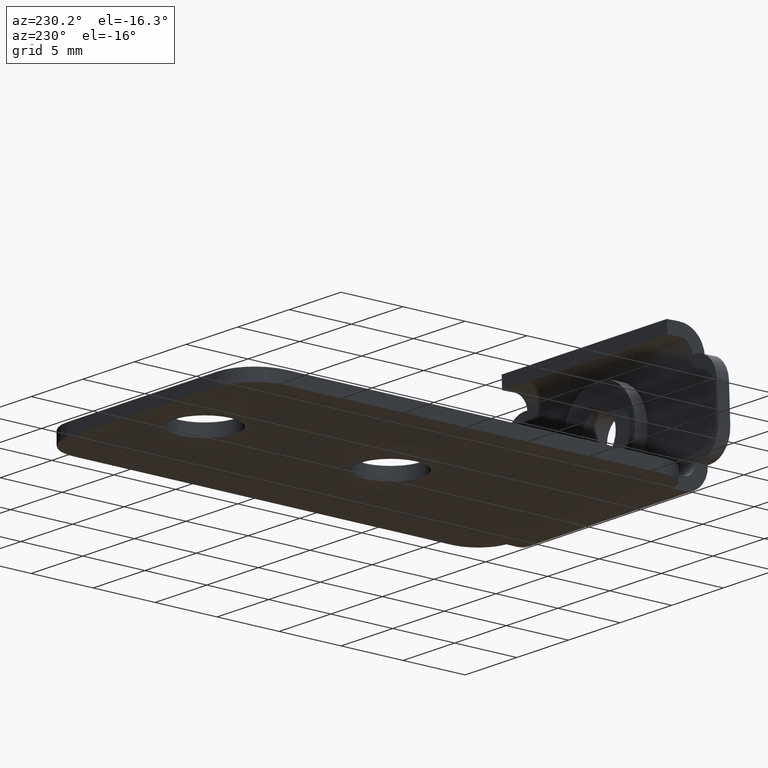
[diagram: clean part render]
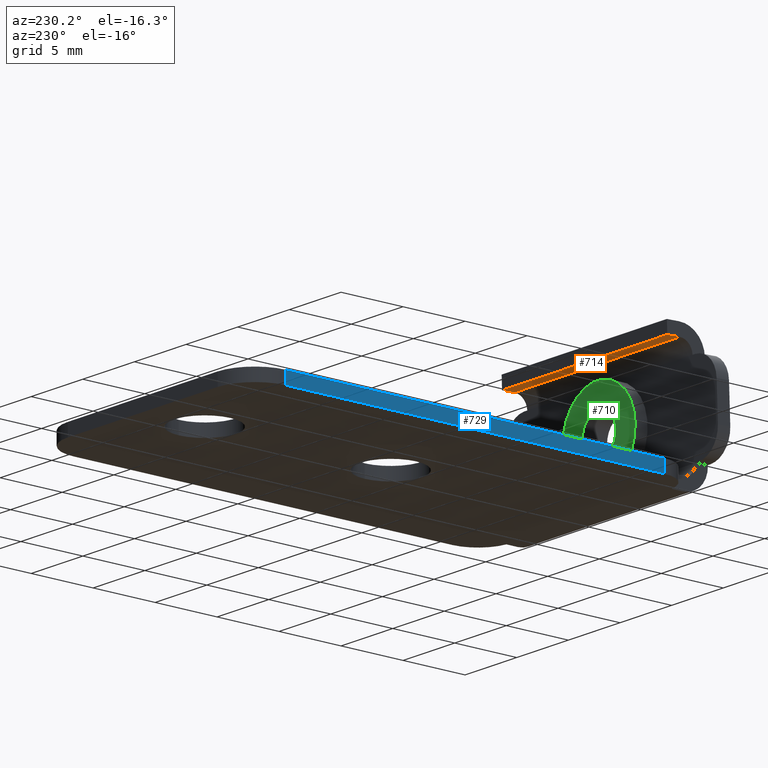
[diagram: same view with three faces highlighted in distinct colors, each labeled with its STEP entity id]
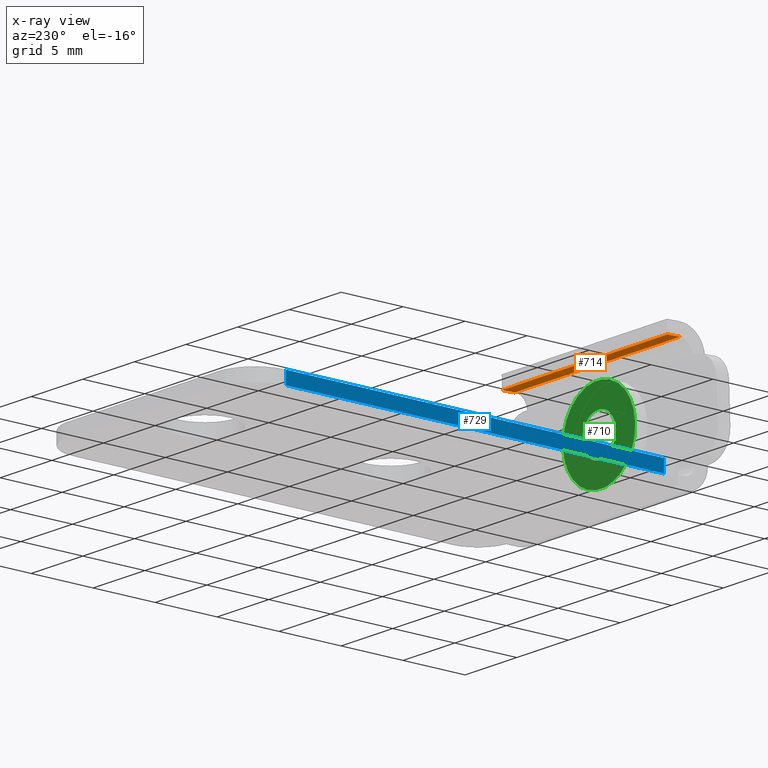
[diagram: x-ray of the same camera — body ghosted, the three highlighted faces saturated]
A machine part, auxiliary view with three faces highlighted in distinct colors.
The next image is the same camera in x-ray (body ghosted, the three faces saturated) — at least one of them is partly hidden behind the body in this view.
Their STEP definitions:

[orange] entity #714 — the highlighted planar face has unit normal (-0, -0.0349, -0.9994).
#32=PLANE('',#797);
#66=FACE_OUTER_BOUND('',#110,.T.);
#110=EDGE_LOOP('',(#562,#563,#564,#565));
#172=LINE('',#1173,#240);
#175=LINE('',#1179,#243);
#176=LINE('',#1181,#244);
#177=LINE('',#1182,#245);
#240=VECTOR('',#945,1.44);
#243=VECTOR('',#950,10.);
#244=VECTOR('',#951,1.44);
#245=VECTOR('',#952,10.);
#343=VERTEX_POINT('',#1170);
#344=VERTEX_POINT('',#1172);
#346=VERTEX_POINT('',#1178);
#347=VERTEX_POINT('',#1180);
#424=EDGE_CURVE('',#344,#343,#172,.T.);
#427=EDGE_CURVE('',#343,#346,#175,.T.);
#428=EDGE_CURVE('',#347,#346,#176,.T.);
#429=EDGE_CURVE('',#347,#344,#177,.T.);
#562=ORIENTED_EDGE('',*,*,#427,.T.);
#563=ORIENTED_EDGE('',*,*,#428,.F.);
#564=ORIENTED_EDGE('',*,*,#429,.T.);
#565=ORIENTED_EDGE('',*,*,#424,.T.);
#714=ADVANCED_FACE('',(#66),#32,.T.);
#797=AXIS2_PLACEMENT_3D('',#1177,#948,#949);
#945=DIRECTION('',(-1.27964073796983E-19,-0.999390827019096,0.0348994967025005));
#948=DIRECTION('center_axis',(-8.77896395117753E-19,-0.0348994967025006,
-0.999390827019096));
#949=DIRECTION('ref_axis',(1.27964073796983E-19,0.999390827019096,-0.0348994967025006));
#950=DIRECTION('',(-1.,1.58524263887249E-19,8.72895722582298E-19));
#951=DIRECTION('',(-1.27964073796983E-19,-0.999390827019096,0.0348994967025005));
#952=DIRECTION('',(1.,-1.32352003312216E-19,-1.23420239769183E-19));
#1170=CARTESIAN_POINT('',(8.,-0.652223378936798,8.92410927678595));
#1172=CARTESIAN_POINT('',(8.,0.347167448082297,8.88920978008345));
#1173=CARTESIAN_POINT('',(8.,-5.17336096646543,9.08199088032051));
#1177=CARTESIAN_POINT('Origin',(-1.73425125444884E-16,-1.28281236230941,
8.94612992931834));
#1178=CARTESIAN_POINT('',(-8.,-0.652223378936798,8.92410927678595));
#1179=CARTESIAN_POINT('',(-8.67731948357339E-17,-0.652223378936798,8.92410927678595));
#1180=CARTESIAN_POINT('',(-8.,0.347167448082297,8.88920978008345));
#1181=CARTESIAN_POINT('',(-8.,-5.17336096646543,9.08199088032051));
#1182=CARTESIAN_POINT('',(-8.,0.347167448082297,8.88920978008345));

[blue] entity #729 — the highlighted planar face has unit normal (-1, 0, 0).
#43=PLANE('',#824);
#81=FACE_OUTER_BOUND('',#127,.T.);
#127=EDGE_LOOP('',(#636,#637,#638,#639));
#190=LINE('',#1220,#258);
#195=LINE('',#1245,#263);
#196=LINE('',#1246,#264);
#197=LINE('',#1247,#265);
#258=VECTOR('',#999,10.);
#263=VECTOR('',#1024,10.);
#264=VECTOR('',#1025,10.);
#265=VECTOR('',#1026,10.);
#354=VERTEX_POINT('',#1217);
#355=VERTEX_POINT('',#1219);
#364=VERTEX_POINT('',#1243);
#365=VERTEX_POINT('',#1244);
#447=EDGE_CURVE('',#354,#355,#190,.T.);
#459=EDGE_CURVE('',#364,#365,#195,.T.);
#460=EDGE_CURVE('',#364,#355,#196,.T.);
#461=EDGE_CURVE('',#365,#354,#197,.T.);
#636=ORIENTED_EDGE('',*,*,#459,.F.);
#637=ORIENTED_EDGE('',*,*,#460,.T.);
#638=ORIENTED_EDGE('',*,*,#447,.F.);
#639=ORIENTED_EDGE('',*,*,#461,.F.);
#729=ADVANCED_FACE('',(#81),#43,.T.);
#824=AXIS2_PLACEMENT_3D('',#1242,#1022,#1023);
#999=DIRECTION('',(0.,1.,0.));
#1022=DIRECTION('center_axis',(-1.,0.,0.));
#1023=DIRECTION('ref_axis',(0.,1.,0.));
#1024=DIRECTION('',(0.,-1.,0.));
#1025=DIRECTION('',(0.,0.,-1.));
#1026=DIRECTION('',(0.,0.,-1.));
#1217=CARTESIAN_POINT('',(-10.25,2.48746859276655,-1.));
#1219=CARTESIAN_POINT('',(-10.25,33.,-1.));
#1220=CARTESIAN_POINT('',(-10.25,33.,-1.));
#1242=CARTESIAN_POINT('Origin',(-10.25,2.48746859276655,0.));
#1243=CARTESIAN_POINT('',(-10.25,33.,0.));
#1244=CARTESIAN_POINT('',(-10.25,2.48746859276655,0.));
#1245=CARTESIAN_POINT('',(-10.25,33.,0.));
#1246=CARTESIAN_POINT('',(-10.25,33.,0.));
#1247=CARTESIAN_POINT('',(-10.25,2.48746859276655,0.));

[green] entity #710 — the highlighted planar face has unit normal (-0, -0.9994, 0.0349).
#17=FACE_BOUND('',#106,.T.);
#30=PLANE('',#789);
#62=FACE_OUTER_BOUND('',#105,.T.);
#105=EDGE_LOOP('',(#546));
#106=EDGE_LOOP('',(#547));
#284=CIRCLE('',#784,1.621);
#285=CIRCLE('',#786,3.5);
#335=VERTEX_POINT('',#1138);
#336=VERTEX_POINT('',#1142);
#409=EDGE_CURVE('',#335,#335,#284,.T.);
#411=EDGE_CURVE('',#336,#336,#285,.T.);
#546=ORIENTED_EDGE('',*,*,#411,.F.);
#547=ORIENTED_EDGE('',*,*,#409,.T.);
#710=ADVANCED_FACE('',(#62,#17),#30,.F.);
#784=AXIS2_PLACEMENT_3D('',#1139,#913,#914);
#786=AXIS2_PLACEMENT_3D('',#1143,#918,#919);
#789=AXIS2_PLACEMENT_3D('',#1155,#925,#926);
#913=DIRECTION('center_axis',(-1.27964073796983E-19,-0.999390827019096,
0.0348994967025009));
#914=DIRECTION('ref_axis',(-1.,1.2804207356862E-19,0.));
#918=DIRECTION('center_axis',(-1.27964073796983E-19,-0.999390827019096,
0.0348994967025009));
#919=DIRECTION('ref_axis',(-1.,1.278861215407E-19,-4.46588177151641E-21));
#925=DIRECTION('center_axis',(-1.27964073796983E-19,-0.999390827019096,
0.0348994967025009));
#926=DIRECTION('ref_axis',(0.,-0.0348994967025009,-0.999390827019096));
#1138=CARTESIAN_POINT('',(1.621,-0.809271114098022,4.42685055520002));
#1139=CARTESIAN_POINT('Origin',(1.92592994438724E-33,-0.80927111409804,
4.42685055520002));
#1142=CARTESIAN_POINT('',(3.5,-0.809271114098053,4.42685055520002));
#1143=CARTESIAN_POINT('Origin',(0.,-0.809271114098053,4.42685055520002));
#1155=CARTESIAN_POINT('Origin',(0.,-0.809271114098053,4.42685055520002));